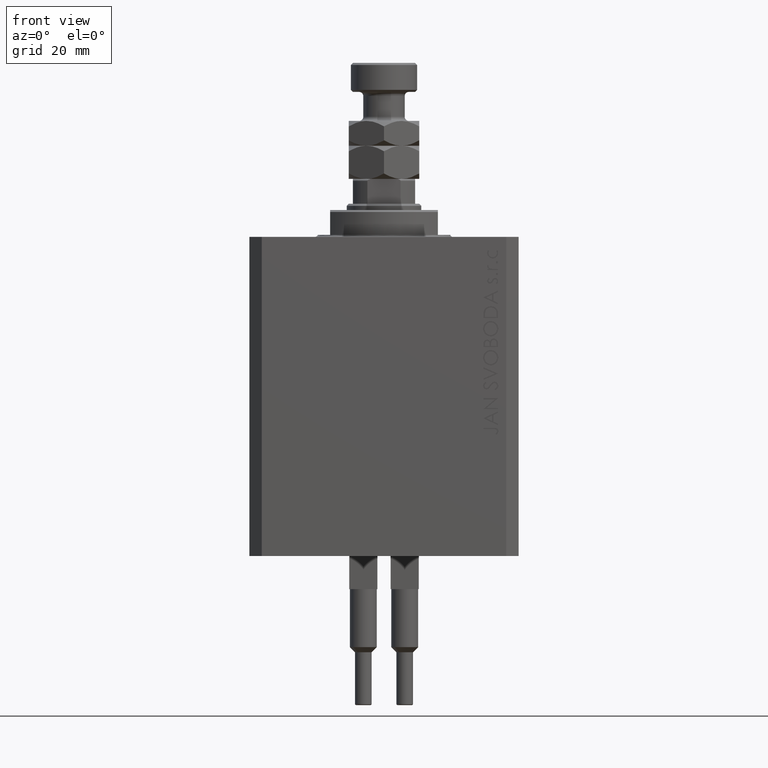
[diagram: clean part render]
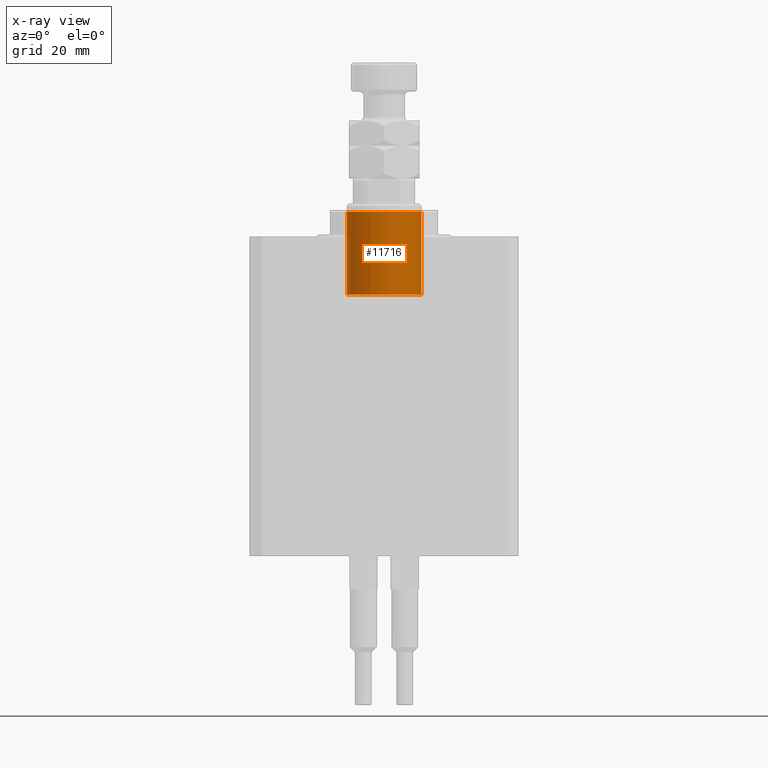
[diagram: x-ray — body ghosted, one internal face saturated and labeled with its STEP entity id]
A machine part, front view, then the same camera in x-ray: the body is ghosted and one INTERNAL B-rep face — a face not visible from any outside direction — is saturated and labeled: STEP entity #11716.
In plain terms, the highlighted cylindrical surface (partial cylindrical patch) has radius 9 mm, axis along (0, -0, 1).
Its self-contained STEP definition (entity closure, byte-faithful):
#27 = DIRECTION ( 'NONE',  ( 0.000000000000000000, 0.000000000000000000, -1.000000000000000000 ) ) ;
#3374 = EDGE_CURVE ( 'NONE', #21316, #45436, #24868, .T. ) ;
#4136 = VECTOR ( 'NONE', #48352, 1000.000000000000000 ) ;
#4188 = DIRECTION ( 'NONE',  ( -0.000000000000000000, -0.000000000000000000, -1.000000000000000000 ) ) ;
#5870 = CIRCLE ( 'NONE', #32459, 9.000000000000000000 ) ;
#6178 = VECTOR ( 'NONE', #46452, 1000.000000000000000 ) ;
#8621 = ORIENTED_EDGE ( 'NONE', *, *, #3374, .F. ) ;
#8942 = CARTESIAN_POINT ( 'NONE',  ( 0.000000000000000000, 0.000000000000000000, 14.00000000000000178 ) ) ;
#11716 = ADVANCED_FACE ( 'NONE', ( #15307 ), #30683, .F. ) ;
#11724 = AXIS2_PLACEMENT_3D ( 'NONE', #49374, #4188, #26388 ) ;
#11989 = VERTEX_POINT ( 'NONE', #14684 ) ;
#14398 = EDGE_LOOP ( 'NONE', ( #37775, #32083, #36221, #8621 ) ) ;
#14684 = CARTESIAN_POINT ( 'NONE',  ( 9.000000000000000000, 1.102182119232617714E-15, -5.999999999999987566 ) ) ;
#15307 = FACE_OUTER_BOUND ( 'NONE', #14398, .T. ) ;
#20204 = DIRECTION ( 'NONE',  ( -1.000000000000000000, 0.000000000000000000, 0.000000000000000000 ) ) ;
#21316 = VERTEX_POINT ( 'NONE', #44348 ) ;
#21403 = VERTEX_POINT ( 'NONE', #24285 ) ;
#22746 = EDGE_CURVE ( 'NONE', #21403, #11989, #35317, .T. ) ;
#24285 = CARTESIAN_POINT ( 'NONE',  ( 9.000000000000000000, 1.102182119232617714E-15, 14.00000000000000178 ) ) ;
#24311 = DIRECTION ( 'NONE',  ( -1.000000000000000000, 0.000000000000000000, 0.000000000000000000 ) ) ;
#24868 = LINE ( 'NONE', #40781, #4136 ) ;
#26077 = CIRCLE ( 'NONE', #40621, 9.000000000000000000 ) ;
#26388 = DIRECTION ( 'NONE',  ( -1.000000000000000000, 0.000000000000000000, 0.000000000000000000 ) ) ;
#29651 = CARTESIAN_POINT ( 'NONE',  ( -9.000000000000000000, 0.000000000000000000, -5.999999999999987566 ) ) ;
#30683 = CYLINDRICAL_SURFACE ( 'NONE', #11724, 9.000000000000000000 ) ;
#32083 = ORIENTED_EDGE ( 'NONE', *, *, #22746, .T. ) ;
#32141 = DIRECTION ( 'NONE',  ( 0.000000000000000000, 0.000000000000000000, -1.000000000000000000 ) ) ;
#32418 = EDGE_CURVE ( 'NONE', #11989, #45436, #26077, .T. ) ;
#32459 = AXIS2_PLACEMENT_3D ( 'NONE', #8942, #32141, #24311 ) ;
#34602 = CARTESIAN_POINT ( 'NONE',  ( 0.000000000000000000, 0.000000000000000000, -5.999999999999987566 ) ) ;
#35317 = LINE ( 'NONE', #46687, #6178 ) ;
#36221 = ORIENTED_EDGE ( 'NONE', *, *, #32418, .T. ) ;
#37775 = ORIENTED_EDGE ( 'NONE', *, *, #44173, .F. ) ;
#40621 = AXIS2_PLACEMENT_3D ( 'NONE', #34602, #27, #20204 ) ;
#40781 = CARTESIAN_POINT ( 'NONE',  ( -9.000000000000000000, 0.000000000000000000, 14.00000000000000178 ) ) ;
#44173 = EDGE_CURVE ( 'NONE', #21403, #21316, #5870, .T. ) ;
#44348 = CARTESIAN_POINT ( 'NONE',  ( -9.000000000000000000, 0.000000000000000000, 14.00000000000000178 ) ) ;
#45436 = VERTEX_POINT ( 'NONE', #29651 ) ;
#46452 = DIRECTION ( 'NONE',  ( -0.000000000000000000, -0.000000000000000000, -1.000000000000000000 ) ) ;
#46687 = CARTESIAN_POINT ( 'NONE',  ( 9.000000000000000000, 1.102182119232617714E-15, 14.00000000000000178 ) ) ;
#48352 = DIRECTION ( 'NONE',  ( -0.000000000000000000, -0.000000000000000000, -1.000000000000000000 ) ) ;
#49374 = CARTESIAN_POINT ( 'NONE',  ( 0.000000000000000000, 0.000000000000000000, 14.00000000000000178 ) ) ;